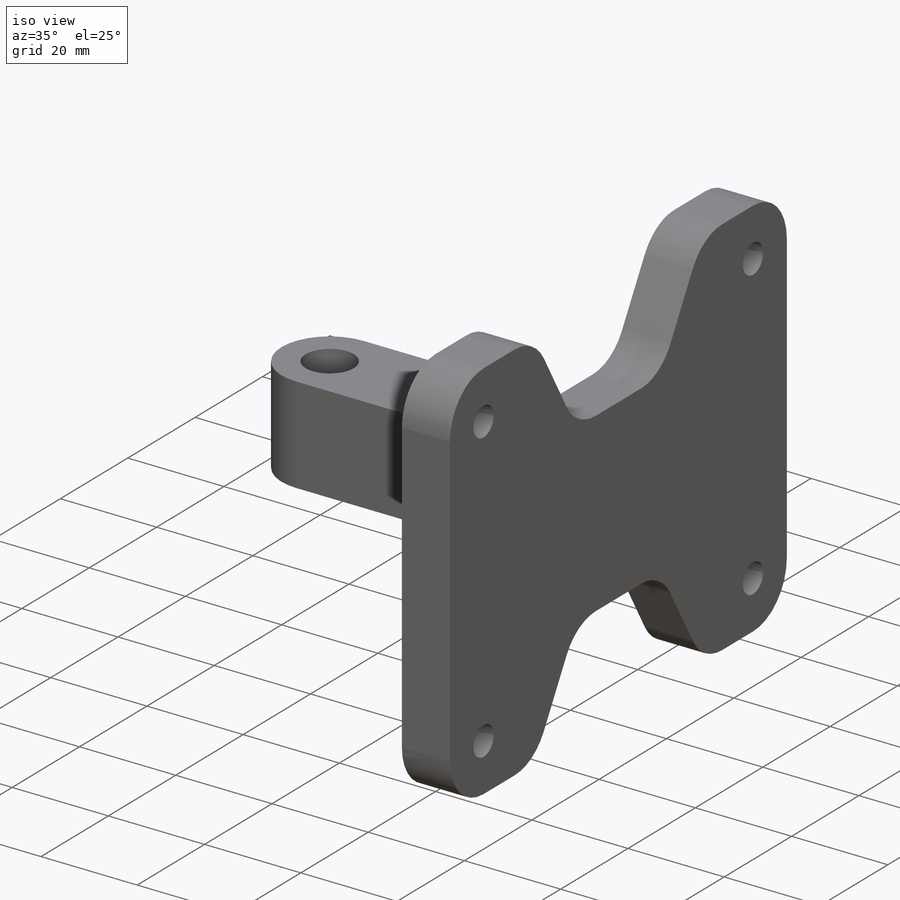
[diagram: iso view]
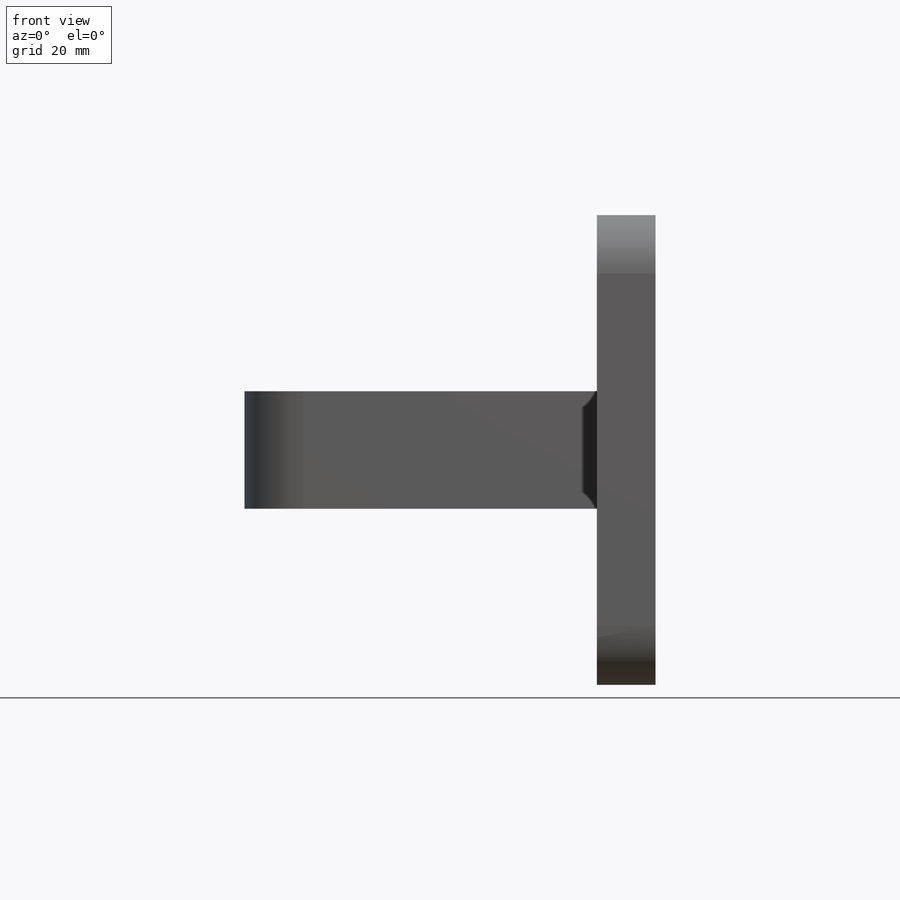
[diagram: front view]
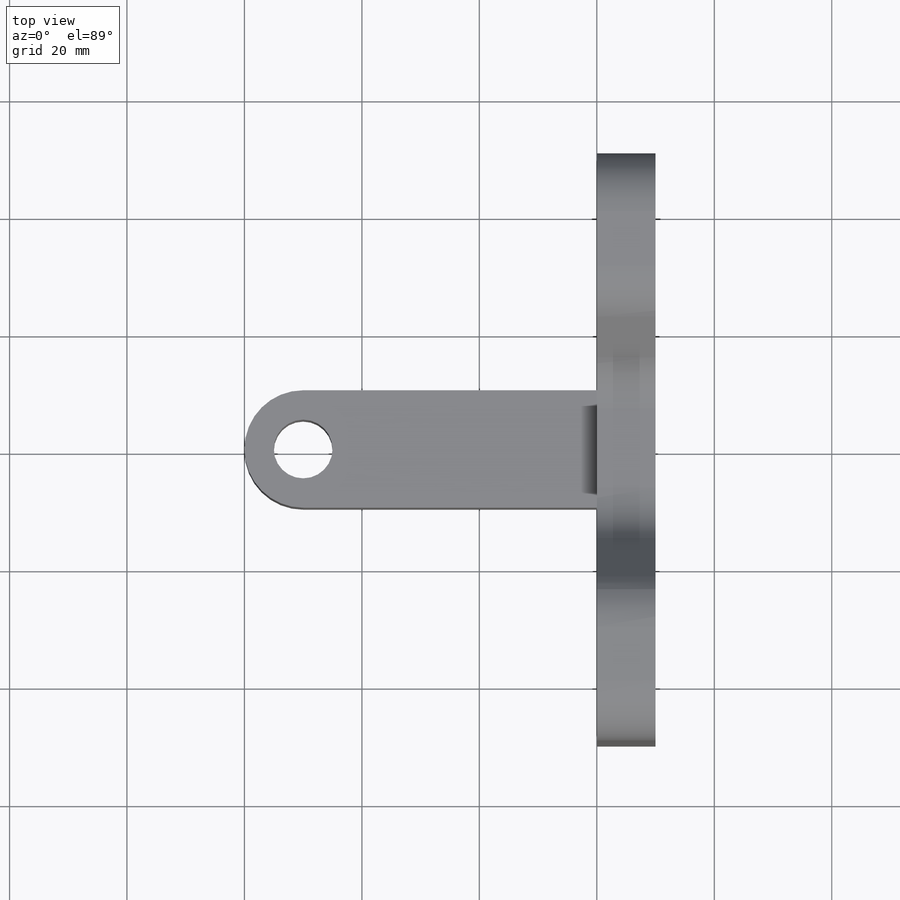
[diagram: top view]
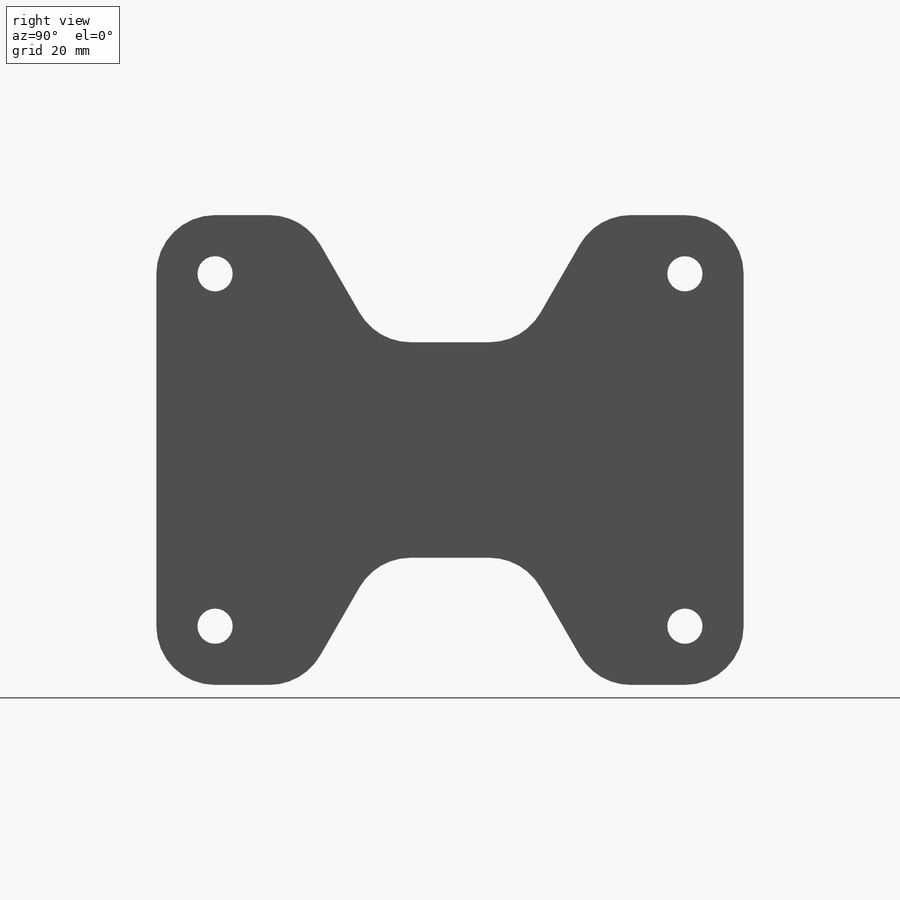
[diagram: right view]
SOLIDWORKS PART (.sldprt)
format: sldprt  version: not decoded by parser v0  size: 331,776 bytes
history: native  units: mm
features: sketch x5, cut_extrude x3, extrude x2, fillet x2, material x1 (+15 scaffold rows collapsed)
feature tree (28):
  scaffold x15  (default folders/planes/origin — collapsed)
  material  "Material <not specified>"
  sketch  "Sketch1"  dims[D1=80.0mm D2=100.0mm]
  extrude  "plate"  Depth=10mm
  sketch  "Sketch2"  dims[D1=25.0mm]
  cut_extrude  "hexagonal cuts"  [1 undecoded]
  sketch  "Sketch3"  dims[D3=6.0mm D1=10.0mm D2=10.0mm]
  cut_extrude  "6mm holes"  [1 undecoded]
  fillet  "Fillet1"  Radius=10mm
  sketch  "Sketch4"  dims[D1=20.0mm]
  extrude  "Swivel"  Depth=60mm
  fillet  "Fillet2"  [1 undecoded]
  sketch  "Sketch5"  dims[D1=10.0mm]
  cut_extrude  "10mm hole"  [1 undecoded]
decode coverage: 8 of 12 modeling features carry decoded parameters
note: 4 parameter values undecoded
summary: no parameter record found for 4 features
note: suppression state not decoded; provenance and decode notes live in map.json
